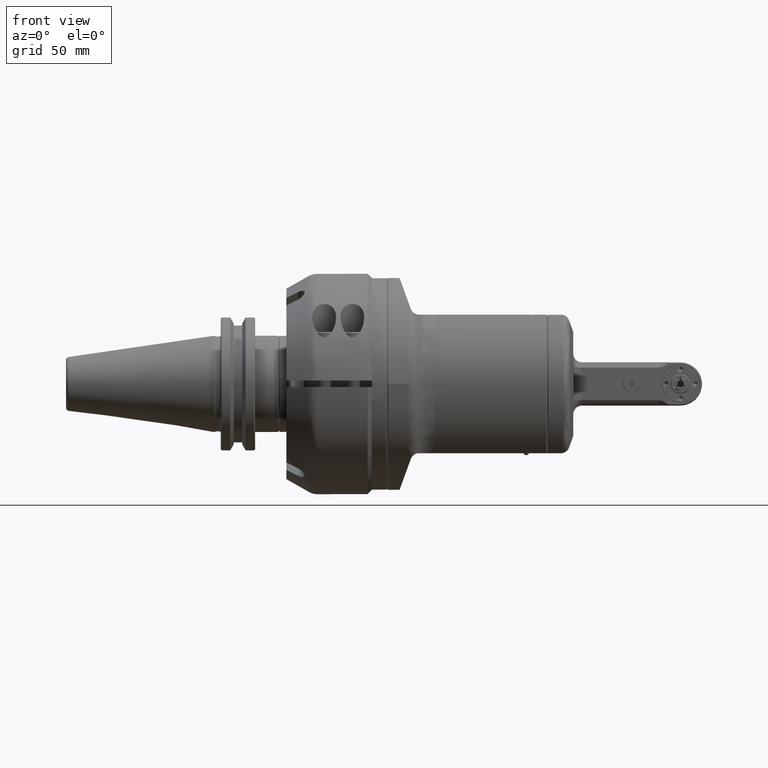
[diagram: clean part render]
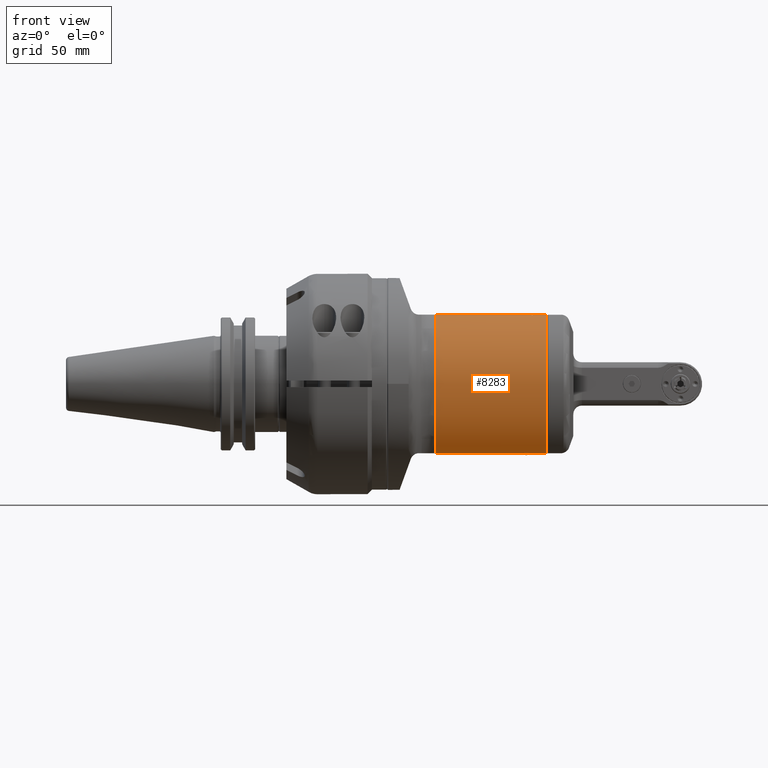
[diagram: same view with one face highlighted and labeled with its STEP entity id]
A machine part, front view. The second image highlights one B-rep face of the part: STEP entity #8283.
In plain terms, the highlighted cylindrical surface (partial cylindrical patch) has radius 42.5 mm, axis along (1, 0, 0).
Its self-contained STEP definition (entity closure, byte-faithful):
#598=FACE_OUTER_BOUND('',#1096,.T.);
#1096=EDGE_LOOP('',(#5458,#5459,#5460,#5461,#5462,#5463,#5464));
#1649=ELLIPSE('',#9015,60.1040764008565,42.5);
#1650=ELLIPSE('',#9016,60.1040764008565,42.5);
#1811=LINE('',#12523,#2389);
#1818=LINE('',#12586,#2396);
#1819=LINE('',#12593,#2397);
#2389=VECTOR('',#9954,10.);
#2396=VECTOR('',#9971,10.);
#2397=VECTOR('',#9978,51.26935071414);
#2965=CIRCLE('',#9017,42.5);
#2966=CIRCLE('',#9018,42.5);
#3377=VERTEX_POINT('',#12521);
#3378=VERTEX_POINT('',#12522);
#3391=VERTEX_POINT('',#12584);
#3392=VERTEX_POINT('',#12585);
#3393=VERTEX_POINT('',#12587);
#3394=VERTEX_POINT('',#12590);
#3395=VERTEX_POINT('',#12592);
#4190=EDGE_CURVE('',#3377,#3378,#1811,.T.);
#4205=EDGE_CURVE('',#3391,#3392,#1818,.T.);
#4206=EDGE_CURVE('',#3393,#3392,#1649,.T.);
#4207=EDGE_CURVE('',#3377,#3393,#1650,.T.);
#4208=EDGE_CURVE('',#3394,#3378,#2965,.T.);
#4209=EDGE_CURVE('',#3394,#3395,#1819,.T.);
#4210=EDGE_CURVE('',#3391,#3395,#2966,.T.);
#5458=ORIENTED_EDGE('',*,*,#4205,.T.);
#5459=ORIENTED_EDGE('',*,*,#4206,.F.);
#5460=ORIENTED_EDGE('',*,*,#4207,.F.);
#5461=ORIENTED_EDGE('',*,*,#4190,.T.);
#5462=ORIENTED_EDGE('',*,*,#4208,.F.);
#5463=ORIENTED_EDGE('',*,*,#4209,.T.);
#5464=ORIENTED_EDGE('',*,*,#4210,.F.);
#7873=CYLINDRICAL_SURFACE('',#9014,42.5);
#8283=ADVANCED_FACE('',(#598),#7873,.T.);
#9014=AXIS2_PLACEMENT_3D('',#12583,#9969,#9970);
#9015=AXIS2_PLACEMENT_3D('',#12588,#9972,#9973);
#9016=AXIS2_PLACEMENT_3D('',#12589,#9974,#9975);
#9017=AXIS2_PLACEMENT_3D('',#12591,#9976,#9977);
#9018=AXIS2_PLACEMENT_3D('',#12594,#9979,#9980);
#9954=DIRECTION('',(-1.,0.,0.));
#9969=DIRECTION('center_axis',(1.,0.,0.));
#9970=DIRECTION('ref_axis',(0.,-1.,0.));
#9971=DIRECTION('',(-1.,0.,0.));
#9972=DIRECTION('center_axis',(-0.707106781186548,0.,0.707106781186548));
#9973=DIRECTION('ref_axis',(-0.707106781186547,0.,-0.707106781186547));
#9974=DIRECTION('center_axis',(0.707106781186548,0.,0.707106781186548));
#9975=DIRECTION('ref_axis',(0.707106781186547,0.,-0.707106781186547));
#9976=DIRECTION('center_axis',(-1.,0.,0.));
#9977=DIRECTION('ref_axis',(0.,-0.658087824515174,-0.75294117647057));
#9978=DIRECTION('',(1.,3.473462649786E-9,-3.035885710973E-9));
#9979=DIRECTION('center_axis',(1.,0.,0.));
#9980=DIRECTION('ref_axis',(0.,-0.658087824515174,0.75294117647057));
#12521=CARTESIAN_POINT('',(61.6999999991285,-27.9687325408966,32.0000000003967));
#12522=CARTESIAN_POINT('',(17.23064887392,-27.96873254189,32.));
#12523=CARTESIAN_POINT('',(22.25229287192,-27.968732541894,32.));
#12583=CARTESIAN_POINT('Origin',(22.25229287192,0.,0.));
#12584=CARTESIAN_POINT('',(68.5,-27.96873254189,32.));
#12585=CARTESIAN_POINT('',(62.3000000008715,-27.9687325408966,32.0000000003967));
#12586=CARTESIAN_POINT('',(22.25229287192,-27.968732541894,32.));
#12587=CARTESIAN_POINT('',(62.,-28.30830266901,31.7));
#12588=CARTESIAN_POINT('Origin',(30.3,0.,0.));
#12589=CARTESIAN_POINT('Origin',(93.7,0.,0.));
#12590=CARTESIAN_POINT('',(17.23064887381,-27.96873254189,-32.));
#12591=CARTESIAN_POINT('Origin',(17.23064887381,0.,0.));
#12592=CARTESIAN_POINT('',(68.4999999587753,-27.9687323282238,-32.0000002221198));
#12593=CARTESIAN_POINT('',(17.23064887381,-27.96873254189,-32.));
#12594=CARTESIAN_POINT('Origin',(68.5,0.,0.));